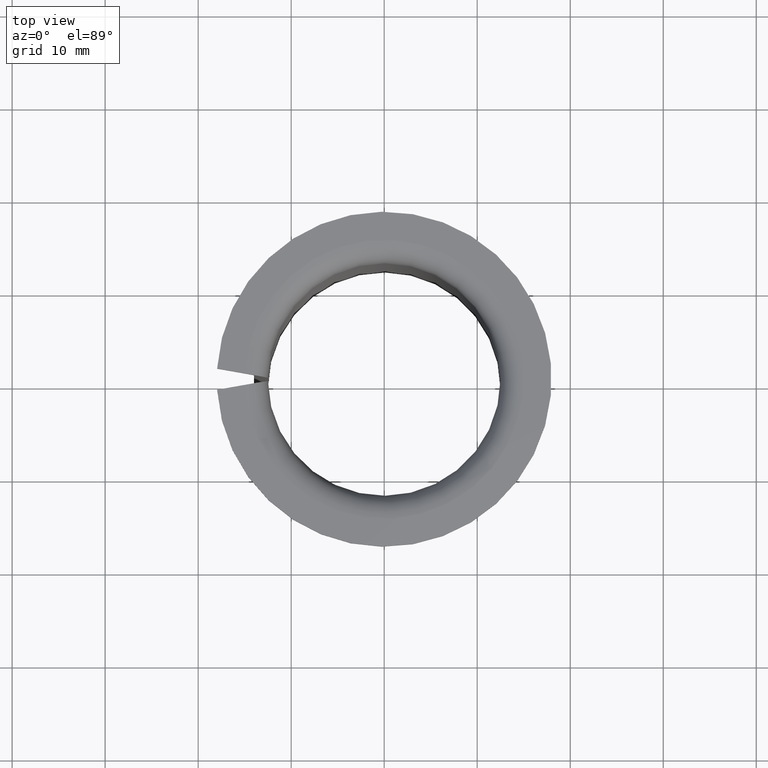
[diagram: clean part render]
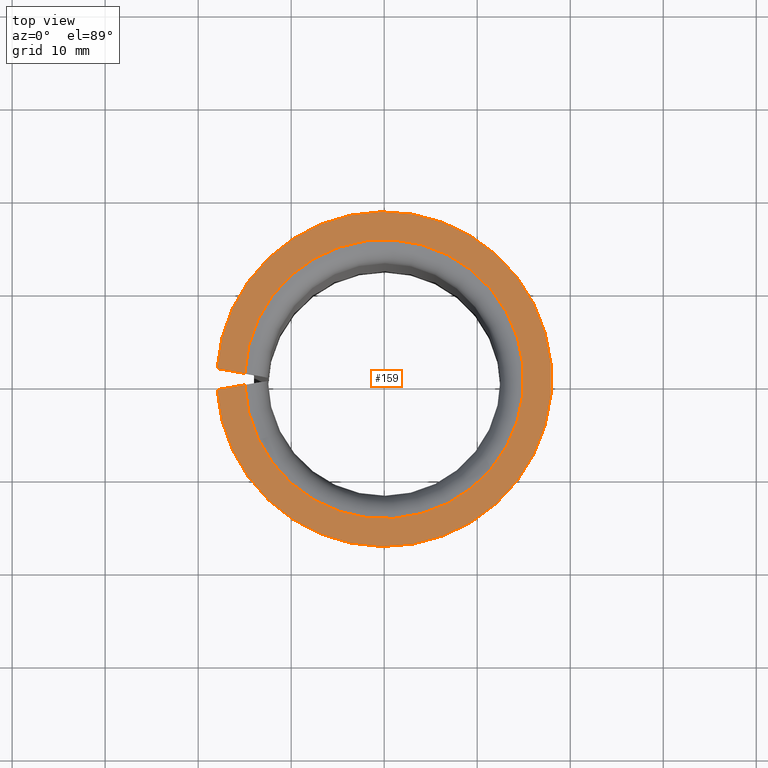
[diagram: same view with one face highlighted and labeled with its STEP entity id]
A machine part, top view. The second image highlights one B-rep face of the part: STEP entity #159.
In plain terms, the highlighted planar face has unit normal (0, -0, 1).
Its self-contained STEP definition (entity closure, byte-faithful):
#159=ADVANCED_FACE('',(#179),#180,.T.);
#179=FACE_OUTER_BOUND('',#204,.T.);
#180=PLANE('',#205);
#204=EDGE_LOOP('',(#264,#265,#266,#267));
#205=AXIS2_PLACEMENT_3D('',#268,#269,#270);
#264=ORIENTED_EDGE('',*,*,#327,.T.);
#265=ORIENTED_EDGE('',*,*,#335,.F.);
#266=ORIENTED_EDGE('',*,*,#333,.F.);
#267=ORIENTED_EDGE('',*,*,#313,.T.);
#268=CARTESIAN_POINT('',(0.018,3.46944695195362E-018,0.06));
#269=DIRECTION('',(0.0,6.12323399573677E-017,1.0));
#270=DIRECTION('',(0.0,-1.0,6.12323399573677E-017));
#313=EDGE_CURVE('',#345,#343,#346,.T.);
#327=EDGE_CURVE('',#343,#369,#371,.T.);
#333=EDGE_CURVE('',#345,#380,#381,.T.);
#335=EDGE_CURVE('',#380,#369,#383,.T.);
#343=VERTEX_POINT('',#393);
#345=VERTEX_POINT('',#410);
#346=LINE('',#411,#412);
#369=VERTEX_POINT('',#456);
#371=CIRCLE('',#473,0.015);
#380=VERTEX_POINT('',#490);
#381=CIRCLE('',#491,0.018);
#383=LINE('',#494,#495);
#393=CARTESIAN_POINT('',(0.0149873904376732,-0.000614921026426486,0.06));
#410=CARTESIAN_POINT('',(0.0179638791905746,-0.00113975630133829,0.06));
#411=CARTESIAN_POINT('',(0.0223328852831343,-0.00191012995433623,0.06));
#412=VECTOR('',#510,1.0);
#456=CARTESIAN_POINT('',(0.0149873904376732,0.000614921026426495,0.06));
#473=AXIS2_PLACEMENT_3D('',#525,#526,#527);
#490=CARTESIAN_POINT('',(0.0179638791905746,0.0011397563013383,0.06));
#491=AXIS2_PLACEMENT_3D('',#538,#539,#540);
#494=CARTESIAN_POINT('',(0.0223328852831343,0.00191012995433624,0.06));
#495=VECTOR('',#542,1.0);
#510=DIRECTION('',(-0.984807753012208,0.173648177666931,0.0));
#525=CARTESIAN_POINT('',(0.0,3.46944695195362E-018,0.06));
#526=DIRECTION('',(0.0,-6.12323399573677E-017,-1.0));
#527=DIRECTION('',(0.0,1.0,-6.12323399573677E-017));
#538=CARTESIAN_POINT('',(0.0,3.46944695195362E-018,0.06));
#539=DIRECTION('',(0.0,-6.12323399573677E-017,-1.0));
#540=DIRECTION('',(0.0,1.0,-6.12323399573677E-017));
#542=DIRECTION('',(-0.984807753012208,-0.173648177666931,2.0942693688385E-017));